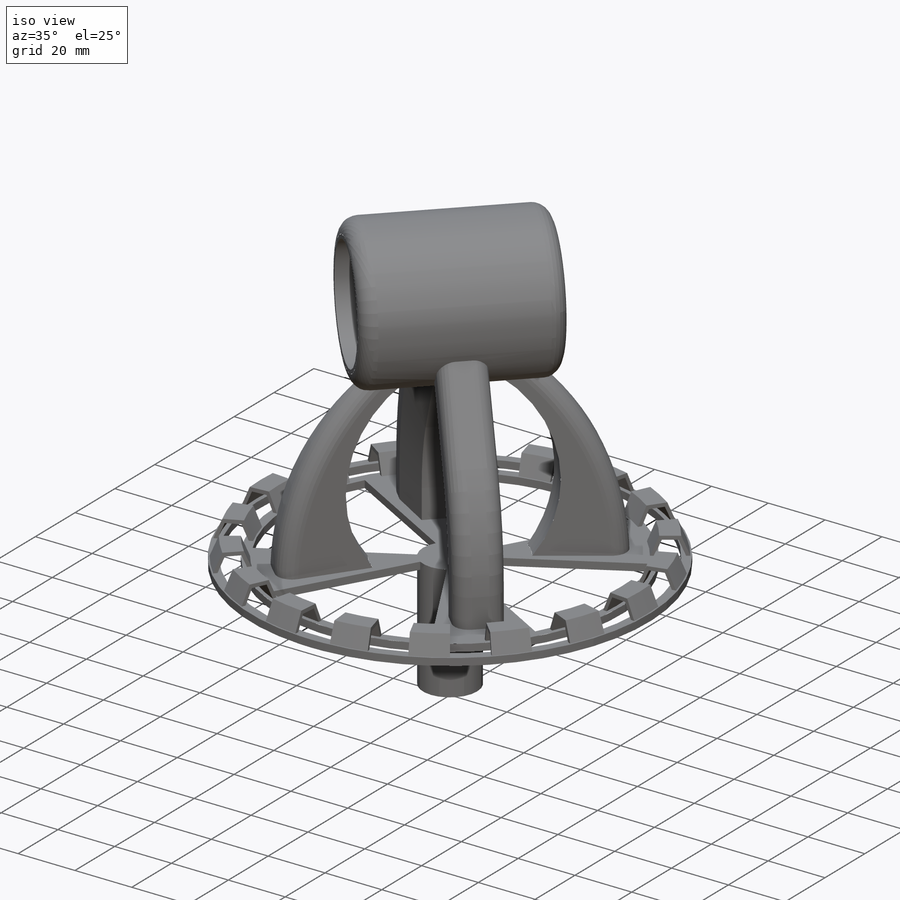
[diagram: iso view]
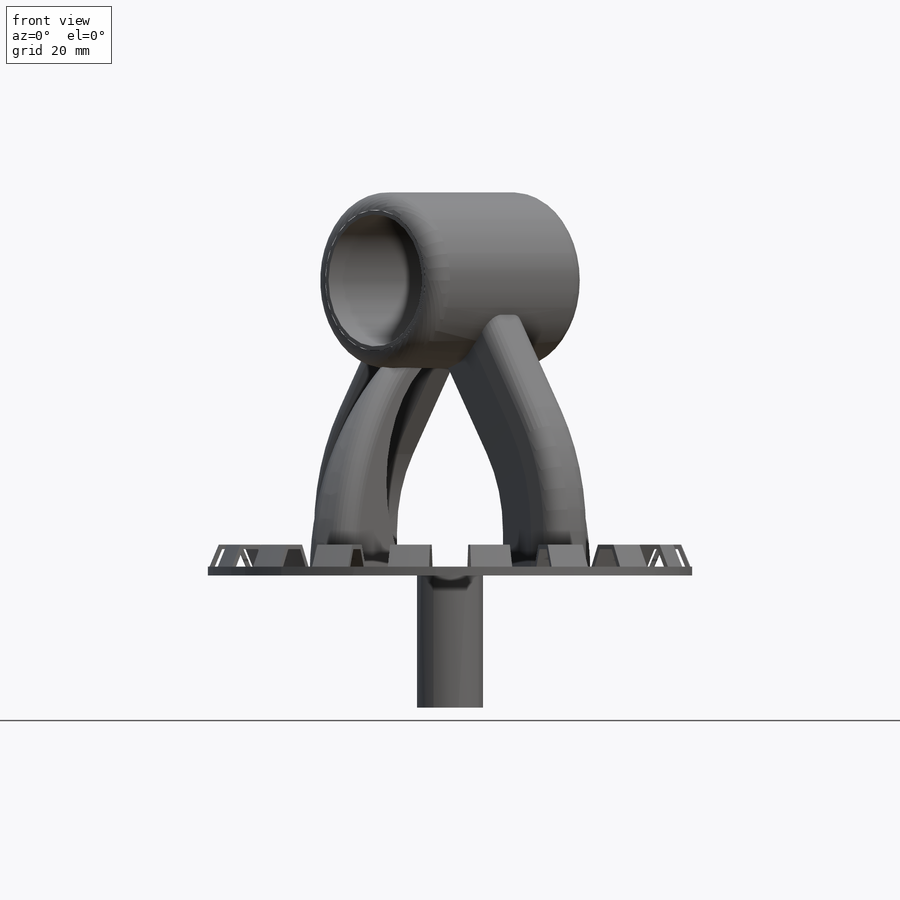
[diagram: front view]
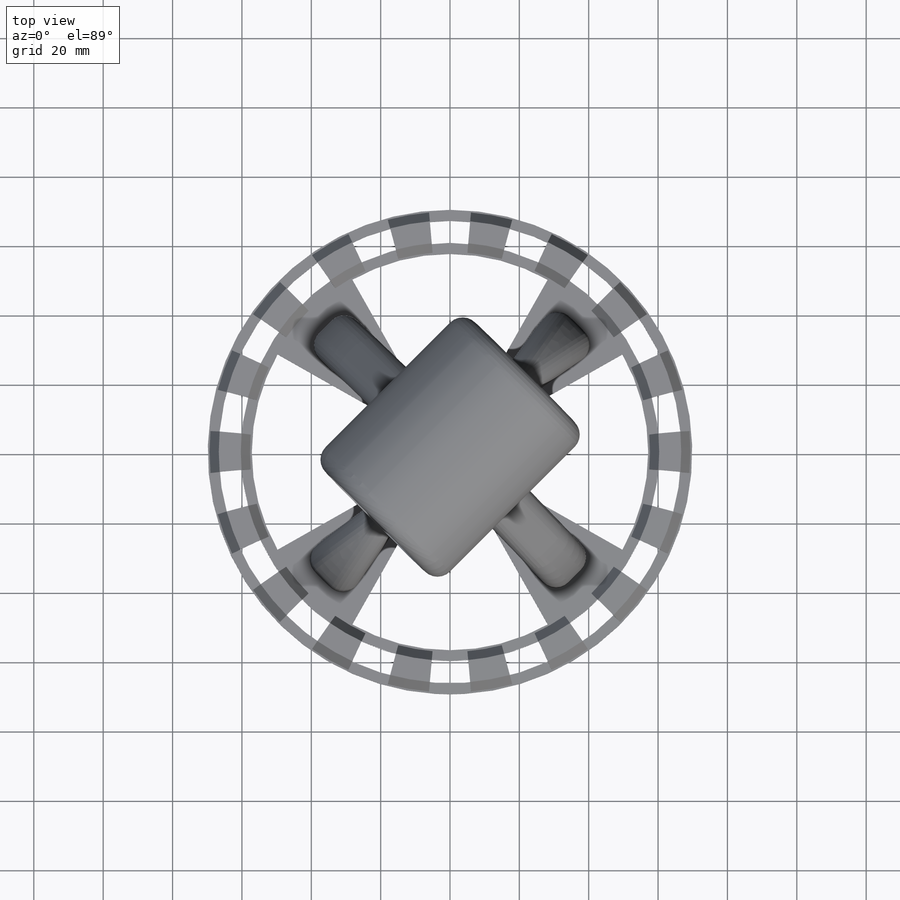
[diagram: top view]
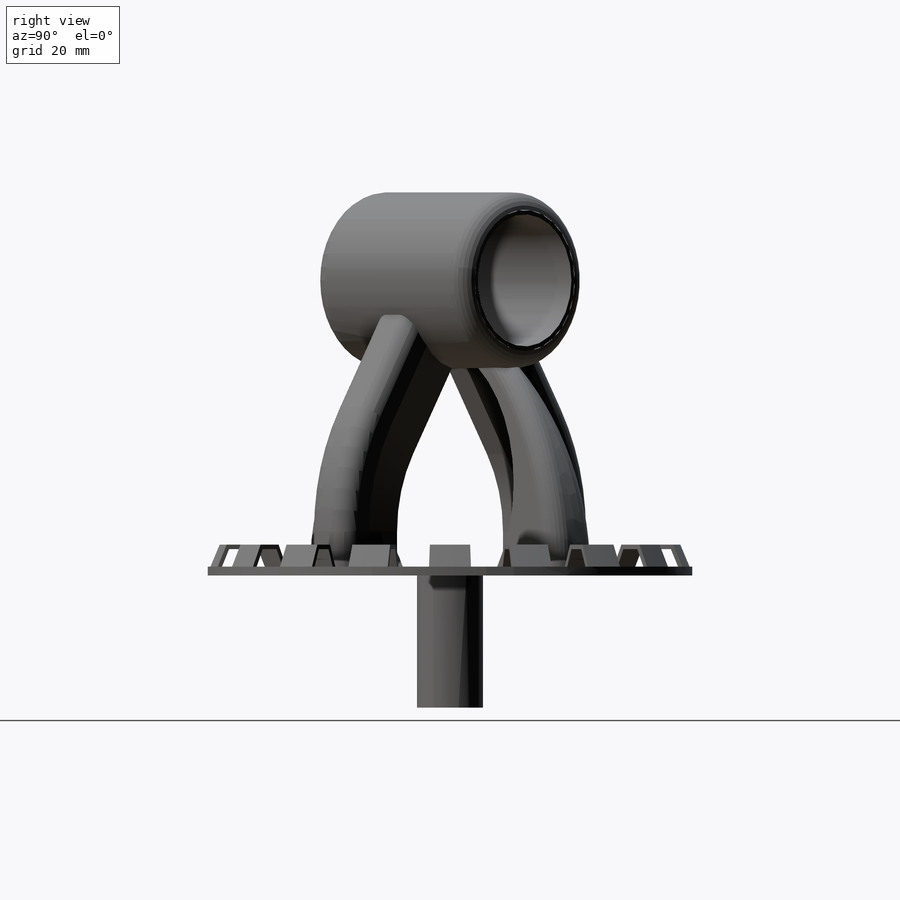
[diagram: right view]
SOLIDWORKS PART (.sldprt)
format: sldprt  version: not decoded by parser v0  size: 623,616 bytes
history: native  units: mm
features: sketch x11, extrude x3, cut_extrude x3, revolve x2, plane x2, fillet x2, material x1, pattern_circular x1, sweep x1, mirror x1 (+13 scaffold rows collapsed)
feature tree (40):
  scaffold x13  (default folders/planes/origin — collapsed)
  material  "Material <not specified>"
  sketch  "Sketch1"  dims[D1=19.05mm]
  extrude  "Boss-Extrude1"  Depth=38.1mm
  sketch  "Sketch2"  dims[D1=139.7mm]
  extrude  "Boss-Extrude2"  Depth=2.54mm
  sketch  "Sketch3"  dims[c1.D3=~62.441017mm c1.D1=69.85mm c2.D1=45.0deg c2.D2=5.08mm c2.D3=12.7mm]
  cut_extrude  "Cut-Extrude1"  [1 undecoded]
  sketch  "Sketch5"  dims[D1=0.508mm D2=1.27mm D3=0.508mm D4=1.27mm D5=5.08mm D6=6.35mm]
  revolve  "Revolve1"  Angle=10deg
  pattern_circular  "CirPattern1"  Count=18 Angle=20deg
  sketch  "Sketch4"  dims[D1=6.35mm D2=127.0mm]
  cut_extrude  "Cut-Extrude2"  Depth=2.54mm
  sketch  "Sketch6"  dims[D1=25.4mm D2=7.62mm D3=15.24mm D4=10.16mm D5=15.24mm]
  plane  "Plane1"
  sketch  "Sketch7"  dims[D1=10.16mm D2=10.16mm D3=30.48mm D4=21.59mm]
  sweep  "Sweep1"
  sketch  "Sketch8"
  plane  "Plane2"
  mirror  "Mirror1"
  sketch  "Sketch9"  dims[D1=12.7mm D2=21.59mm D3=30.48mm]
  revolve  "Revolve2"  Angle=20deg
  sketch  "Sketch10"  dims[D2=50.8mm D1=123.19mm]
  extrude  "Boss-Extrude3"  Depth=60.96mm
  fillet  "Fillet1"  Radius=5.08mm
  fillet  "Fillet2"  Radius=5.08mm
  sketch  "Sketch11"  dims[D1=38.1mm]
  cut_extrude  "Cut-Extrude3"  [1 undecoded]
decode coverage: 19 of 24 modeling features carry decoded parameters
note: ~ marks probable driven/reference dimensions
note: 2 parameter values undecoded
note: suppression state not decoded; provenance and decode notes live in map.json
